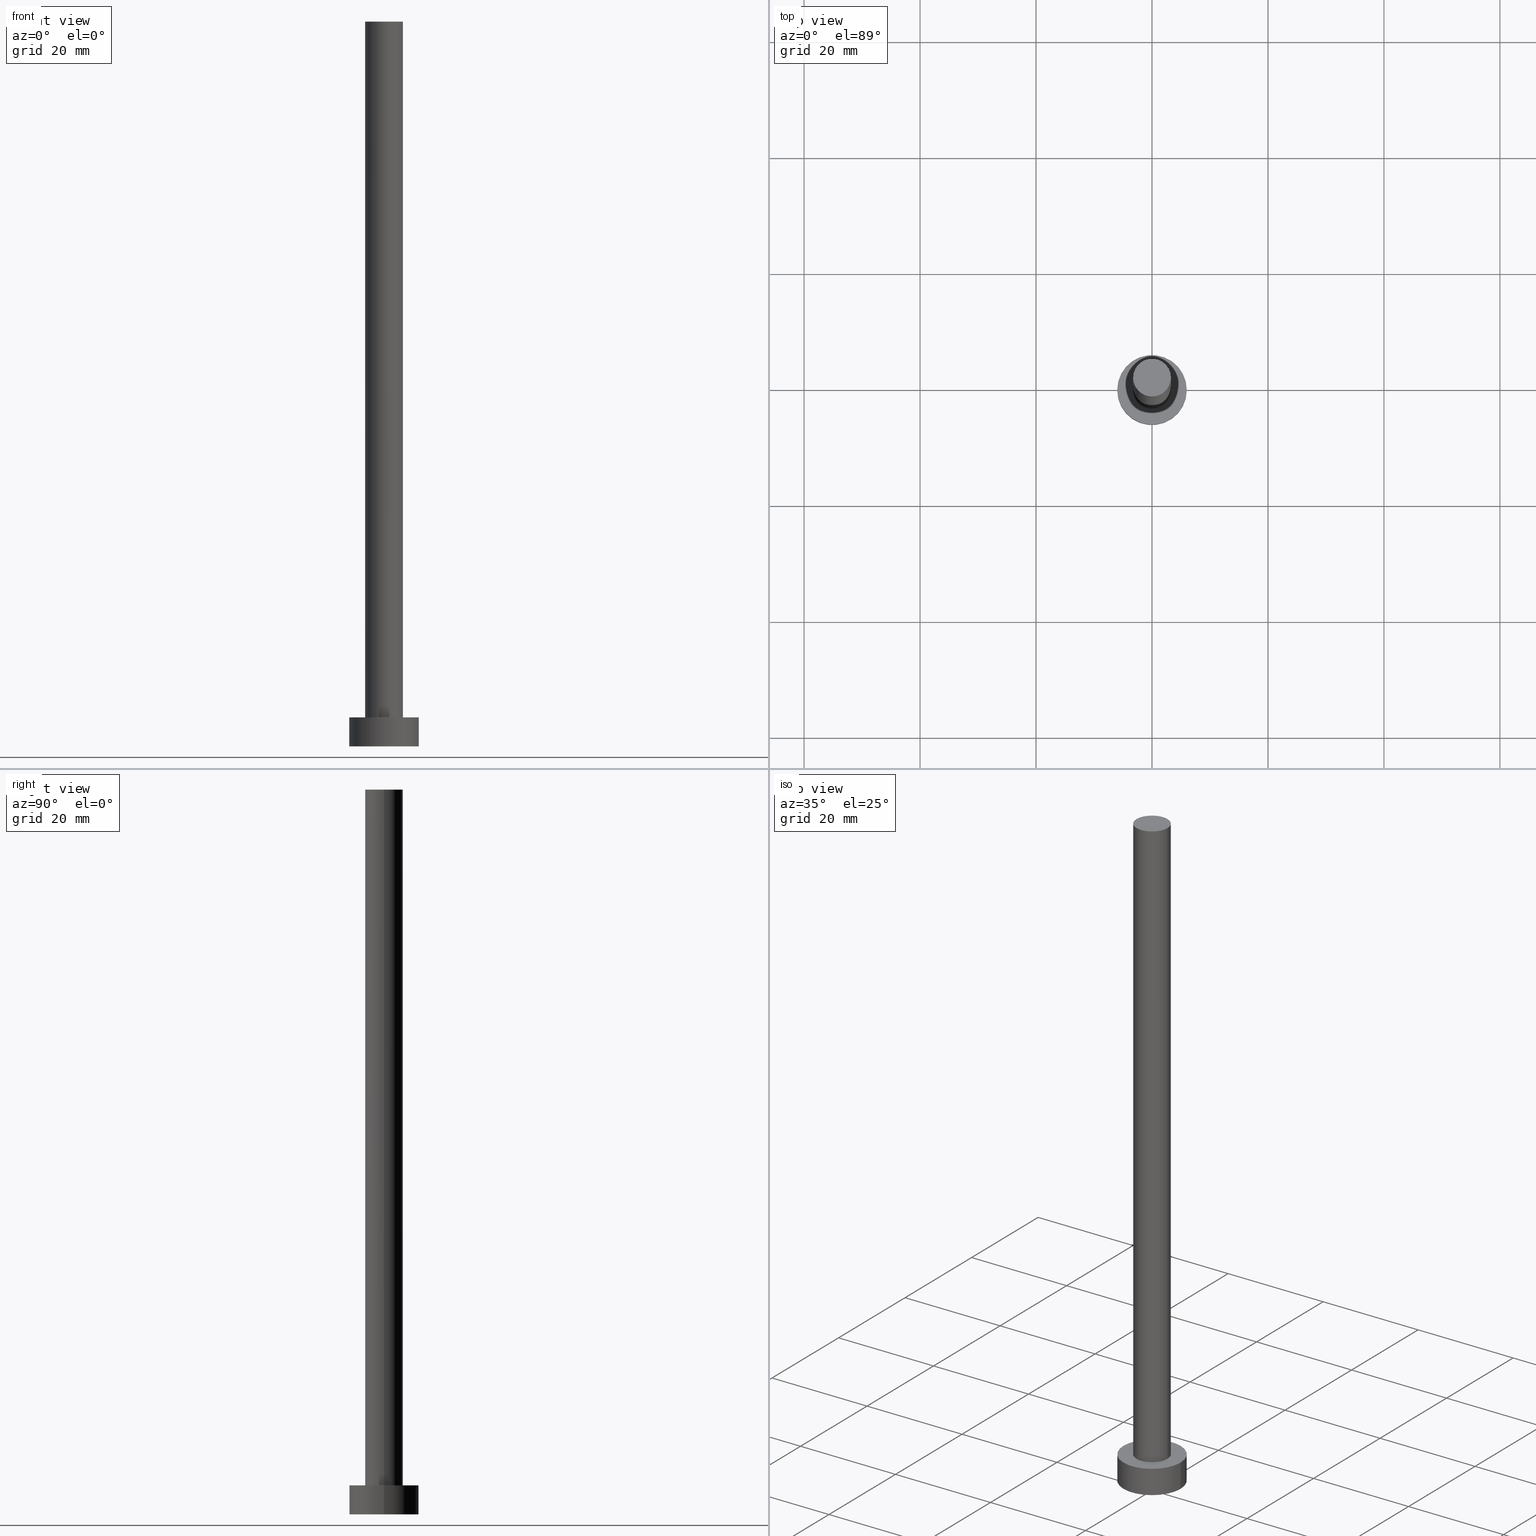
[diagram: canonical four-view strip — front | top / right | iso, engineering-drawing reading convention]
A machine part, canonical four-view strip (front | top / right | iso — engineering-drawing reading convention). The complete STEP part file that produces these views, byte-faithful:
ISO-10303-21;
HEADER;
FILE_DESCRIPTION (( 'STEP AP203' ),
    '1' );
FILE_NAME ('6fcb.STEP',
    '2023-02-13T14:04:38',
    ( '' ),
    ( '' ),
    'SwSTEP 2.0',
    'SolidWorks 2019',
    '' );
FILE_SCHEMA (( 'CONFIG_CONTROL_DESIGN' ));
ENDSEC;

DATA;
#1 =( NAMED_UNIT ( * ) PLANE_ANGLE_UNIT ( ) SI_UNIT ( $, .RADIAN. ) );
#2 = APPROVAL_STATUS ( 'not_yet_approved' ) ;
#3 = DESIGN_CONTEXT ( 'detailed design', #110, 'design' ) ;
#4 = ORIENTED_EDGE ( 'NONE', *, *, #38, .F. ) ;
#5 = ORIENTED_EDGE ( 'NONE', *, *, #147, .F. ) ;
#6 = CC_DESIGN_PERSON_AND_ORGANIZATION_ASSIGNMENT ( #42, #96, ( #28 ) ) ;
#7 = VERTEX_POINT ( 'NONE', #46 ) ;
#8 = FACE_OUTER_BOUND ( 'NONE', #214, .T. ) ;
#9 = AXIS2_PLACEMENT_3D ( 'NONE', #105, #83, #219 ) ;
#10 = APPROVAL_ROLE ( '' ) ;
#11 = ORIENTED_EDGE ( 'NONE', *, *, #203, .T. ) ;
#12 = EDGE_CURVE ( 'NONE', #165, #32, #95, .T. ) ;
#13 = PERSON_AND_ORGANIZATION ( #246, #21 ) ;
#14 = COORDINATED_UNIVERSAL_TIME_OFFSET ( 1, 0, .AHEAD. ) ;
#15 = ADVANCED_FACE ( 'NONE', ( #122 ), #163, .F. ) ;
#16 = CYLINDRICAL_SURFACE ( 'NONE', #196, 3.250000000000000444 ) ;
#17 =( GEOMETRIC_REPRESENTATION_CONTEXT ( 3 ) GLOBAL_UNCERTAINTY_ASSIGNED_CONTEXT ( ( #240 ) ) GLOBAL_UNIT_ASSIGNED_CONTEXT ( ( #91, #1, #100 ) ) REPRESENTATION_CONTEXT ( 'NONE', 'WORKASPACE' ) );
#18 = ADVANCED_FACE ( 'NONE', ( #67 ), #72, .T. ) ;
#19 = DIRECTION ( 'NONE',  ( 1.000000000000000000, 0.000000000000000000, 0.000000000000000000 ) ) ;
#20 = CIRCLE ( 'NONE', #212, 6.000000000000000888 ) ;
#21 = ORGANIZATION ( 'NEUR�EN�', 'NEUR�EN�', '' ) ;
#22 = CARTESIAN_POINT ( 'NONE',  ( 6.000000000000000888, 7.347880794884120722E-16, 5.000000000000000000 ) ) ;
#23 = CARTESIAN_POINT ( 'NONE',  ( -6.000000000000000888, 0.000000000000000000, 0.000000000000000000 ) ) ;
#24 = LINE ( 'NONE', #22, #207 ) ;
#25 = AXIS2_PLACEMENT_3D ( 'NONE', #251, #157, #185 ) ;
#26 = PERSON_AND_ORGANIZATION ( #246, #21 ) ;
#27 = EDGE_LOOP ( 'NONE', ( #225, #113, #211, #193 ) ) ;
#28 = SECURITY_CLASSIFICATION ( '', '', #172 ) ;
#29 = CARTESIAN_POINT ( 'NONE',  ( -6.000000000000000888, 0.000000000000000000, 5.000000000000000000 ) ) ;
#30 = DIRECTION ( 'NONE',  ( -0.000000000000000000, -0.000000000000000000, -1.000000000000000000 ) ) ;
#31 = EDGE_CURVE ( 'NONE', #7, #53, #101, .T. ) ;
#32 = VERTEX_POINT ( 'NONE', #204 ) ;
#33 = DIRECTION ( 'NONE',  ( -0.000000000000000000, -0.000000000000000000, -1.000000000000000000 ) ) ;
#34 = CC_DESIGN_APPROVAL ( #228, ( #28 ) ) ;
#35 = EDGE_CURVE ( 'NONE', #32, #130, #24, .T. ) ;
#36 = DIRECTION ( 'NONE',  ( 0.000000000000000000, 0.000000000000000000, 1.000000000000000000 ) ) ;
#37 = PRODUCT ( '6fcb', '6fcb', '', ( #171 ) ) ;
#38 = EDGE_CURVE ( 'NONE', #90, #53, #244, .T. ) ;
#39 = LOCAL_TIME ( 15, 4, 38.00000000000000000, #57 ) ;
#40 = FACE_OUTER_BOUND ( 'NONE', #71, .T. ) ;
#41 = EDGE_LOOP ( 'NONE', ( #108, #145, #74, #132 ) ) ;
#42 = PERSON_AND_ORGANIZATION ( #246, #21 ) ;
#43 = CARTESIAN_POINT ( 'NONE',  ( 0.000000000000000000, 0.000000000000000000, 5.000000000000000000 ) ) ;
#44 = CYLINDRICAL_SURFACE ( 'NONE', #9, 3.250000000000000444 ) ;
#45 = COORDINATED_UNIVERSAL_TIME_OFFSET ( 1, 0, .AHEAD. ) ;
#46 = CARTESIAN_POINT ( 'NONE',  ( -3.250000000000000444, 0.000000000000000000, 125.0000000000000000 ) ) ;
#47 = DIRECTION ( 'NONE',  ( 1.000000000000000000, 0.000000000000000000, 0.000000000000000000 ) ) ;
#48 = DIRECTION ( 'NONE',  ( -0.000000000000000000, -0.000000000000000000, -1.000000000000000000 ) ) ;
#49 = VERTEX_POINT ( 'NONE', #202 ) ;
#50 = LINE ( 'NONE', #29, #52 ) ;
#51 = DIRECTION ( 'NONE',  ( 1.000000000000000000, 0.000000000000000000, 0.000000000000000000 ) ) ;
#52 = VECTOR ( 'NONE', #209, 1000.000000000000000 ) ;
#53 = VERTEX_POINT ( 'NONE', #127 ) ;
#54 = CC_DESIGN_APPROVAL ( #97, ( #86 ) ) ;
#55 = DIRECTION ( 'NONE',  ( 0.000000000000000000, 0.000000000000000000, 1.000000000000000000 ) ) ;
#56 = LOCAL_TIME ( 15, 4, 38.00000000000000000, #14 ) ;
#57 = COORDINATED_UNIVERSAL_TIME_OFFSET ( 1, 0, .AHEAD. ) ;
#58 = CARTESIAN_POINT ( 'NONE',  ( 0.000000000000000000, 0.000000000000000000, 0.000000000000000000 ) ) ;
#59 = LOCAL_TIME ( 15, 4, 38.00000000000000000, #82 ) ;
#60 = ADVANCED_BREP_SHAPE_REPRESENTATION ( '6fcb', ( #233, #254 ), #17 ) ;
#61 = CIRCLE ( 'NONE', #120, 6.000000000000000888 ) ;
#62 = APPROVAL_DATE_TIME ( #65, #228 ) ;
#63 = DIRECTION ( 'NONE',  ( 1.000000000000000000, 0.000000000000000000, -0.000000000000000000 ) ) ;
#64 = FACE_OUTER_BOUND ( 'NONE', #41, .T. ) ;
#65 = DATE_AND_TIME ( #175, #56 ) ;
#66 = CARTESIAN_POINT ( 'NONE',  ( 0.000000000000000000, 0.000000000000000000, 5.000000000000000000 ) ) ;
#67 = FACE_OUTER_BOUND ( 'NONE', #170, .T. ) ;
#68 = DIRECTION ( 'NONE',  ( 0.000000000000000000, 0.000000000000000000, 1.000000000000000000 ) ) ;
#69 = DIRECTION ( 'NONE',  ( -1.000000000000000000, 0.000000000000000000, 0.000000000000000000 ) ) ;
#70 = ADVANCED_FACE ( 'NONE', ( #181 ), #44, .T. ) ;
#71 = EDGE_LOOP ( 'NONE', ( #151, #92, #89, #167 ) ) ;
#72 = CYLINDRICAL_SURFACE ( 'NONE', #188, 6.000000000000000888 ) ;
#73 = CIRCLE ( 'NONE', #138, 3.250000000000000444 ) ;
#74 = ORIENTED_EDGE ( 'NONE', *, *, #166, .T. ) ;
#75 = EDGE_CURVE ( 'NONE', #53, #90, #73, .T. ) ;
#76 = EDGE_LOOP ( 'NONE', ( #11, #146 ) ) ;
#77 = AXIS2_PLACEMENT_3D ( 'NONE', #142, #143, #47 ) ;
#78 = ORIENTED_EDGE ( 'NONE', *, *, #103, .T. ) ;
#79 = EDGE_CURVE ( 'NONE', #49, #90, #241, .T. ) ;
#80 = DATE_AND_TIME ( #179, #197 ) ;
#81 = APPLICATION_CONTEXT ( 'configuration controlled 3d designs of mechanical parts and assemblies' ) ;
#82 = COORDINATED_UNIVERSAL_TIME_OFFSET ( 1, 0, .AHEAD. ) ;
#83 = DIRECTION ( 'NONE',  ( -0.000000000000000000, -0.000000000000000000, -1.000000000000000000 ) ) ;
#84 = CARTESIAN_POINT ( 'NONE',  ( 0.000000000000000000, 0.000000000000000000, 5.000000000000000000 ) ) ;
#85 = CIRCLE ( 'NONE', #93, 3.250000000000000444 ) ;
#86 = PRODUCT_DEFINITION ( 'NEZN�M�', '', #229, #3 ) ;
#87 = APPROVAL_PERSON_ORGANIZATION ( #98, #94, #231 ) ;
#88 = CARTESIAN_POINT ( 'NONE',  ( -6.000000000000000888, 0.000000000000000000, 5.000000000000000000 ) ) ;
#89 = ORIENTED_EDGE ( 'NONE', *, *, #38, .T. ) ;
#90 = VERTEX_POINT ( 'NONE', #152 ) ;
#91 =( LENGTH_UNIT ( ) NAMED_UNIT ( * ) SI_UNIT ( .MILLI., .METRE. ) );
#92 = ORIENTED_EDGE ( 'NONE', *, *, #79, .T. ) ;
#93 = AXIS2_PLACEMENT_3D ( 'NONE', #116, #55, #117 ) ;
#94 = APPROVAL ( #2, 'NEUR�EN�' ) ;
#95 = CIRCLE ( 'NONE', #150, 6.000000000000000888 ) ;
#96 = PERSON_AND_ORGANIZATION_ROLE ( 'classification_officer' ) ;
#97 = APPROVAL ( #221, 'NEUR�EN�' ) ;
#98 = PERSON_AND_ORGANIZATION ( #246, #21 ) ;
#99 = CARTESIAN_POINT ( 'NONE',  ( 0.000000000000000000, 0.000000000000000000, 5.000000000000000000 ) ) ;
#100 =( NAMED_UNIT ( * ) SI_UNIT ( $, .STERADIAN. ) SOLID_ANGLE_UNIT ( ) );
#101 = LINE ( 'NONE', #124, #183 ) ;
#102 = FACE_OUTER_BOUND ( 'NONE', #76, .T. ) ;
#103 = EDGE_CURVE ( 'NONE', #130, #112, #168, .T. ) ;
#104 = PERSON_AND_ORGANIZATION_ROLE ( 'creator' ) ;
#105 = CARTESIAN_POINT ( 'NONE',  ( 0.000000000000000000, 0.000000000000000000, 125.0000000000000000 ) ) ;
#106 = APPROVAL_ROLE ( '' ) ;
#107 = ORIENTED_EDGE ( 'NONE', *, *, #12, .T. ) ;
#108 = ORIENTED_EDGE ( 'NONE', *, *, #35, .F. ) ;
#109 = FACE_BOUND ( 'NONE', #243, .T. ) ;
#110 = APPLICATION_CONTEXT ( 'configuration controlled 3d designs of mechanical parts and assemblies' ) ;
#111 = APPLICATION_PROTOCOL_DEFINITION ( 'international standard', 'config_control_design', 1994, #81 ) ;
#112 = VERTEX_POINT ( 'NONE', #23 ) ;
#113 = ORIENTED_EDGE ( 'NONE', *, *, #203, .F. ) ;
#114 = CYLINDRICAL_SURFACE ( 'NONE', #129, 6.000000000000000888 ) ;
#115 = ORIENTED_EDGE ( 'NONE', *, *, #166, .F. ) ;
#116 = CARTESIAN_POINT ( 'NONE',  ( 0.000000000000000000, 0.000000000000000000, 125.0000000000000000 ) ) ;
#117 = DIRECTION ( 'NONE',  ( 1.000000000000000000, 0.000000000000000000, 0.000000000000000000 ) ) ;
#118 = PERSON_AND_ORGANIZATION_ROLE ( 'design_supplier' ) ;
#119 = APPROVAL_STATUS ( 'not_yet_approved' ) ;
#120 = AXIS2_PLACEMENT_3D ( 'NONE', #232, #68, #220 ) ;
#121 = DATE_TIME_ROLE ( 'creation_date' ) ;
#122 = FACE_OUTER_BOUND ( 'NONE', #189, .T. ) ;
#123 = DIRECTION ( 'NONE',  ( 0.000000000000000000, 0.000000000000000000, 1.000000000000000000 ) ) ;
#124 = CARTESIAN_POINT ( 'NONE',  ( -3.250000000000000444, 0.000000000000000000, 125.0000000000000000 ) ) ;
#125 = CC_DESIGN_APPROVAL ( #94, ( #229 ) ) ;
#126 = PERSON_AND_ORGANIZATION ( #246, #21 ) ;
#127 = CARTESIAN_POINT ( 'NONE',  ( -3.250000000000000444, 0.000000000000000000, 5.000000000000000000 ) ) ;
#128 = DIRECTION ( 'NONE',  ( 0.000000000000000000, 0.000000000000000000, 1.000000000000000000 ) ) ;
#129 = AXIS2_PLACEMENT_3D ( 'NONE', #66, #213, #248 ) ;
#130 = VERTEX_POINT ( 'NONE', #200 ) ;
#131 = APPROVAL_PERSON_ORGANIZATION ( #182, #97, #106 ) ;
#132 = ORIENTED_EDGE ( 'NONE', *, *, #136, .T. ) ;
#133 = DATE_TIME_ROLE ( 'classification_date' ) ;
#134 = EDGE_CURVE ( 'NONE', #49, #7, #135, .T. ) ;
#135 = CIRCLE ( 'NONE', #230, 3.250000000000000444 ) ;
#136 = EDGE_CURVE ( 'NONE', #112, #130, #61, .T. ) ;
#137 = SHAPE_DEFINITION_REPRESENTATION ( #198, #60 ) ;
#138 = AXIS2_PLACEMENT_3D ( 'NONE', #99, #159, #51 ) ;
#139 = DIRECTION ( 'NONE',  ( -0.000000000000000000, -0.000000000000000000, -1.000000000000000000 ) ) ;
#140 = DIRECTION ( 'NONE',  ( -0.000000000000000000, -0.000000000000000000, -1.000000000000000000 ) ) ;
#141 = CARTESIAN_POINT ( 'NONE',  ( 0.000000000000000000, 0.000000000000000000, 125.0000000000000000 ) ) ;
#142 = CARTESIAN_POINT ( 'NONE',  ( 0.000000000000000000, 0.000000000000000000, 5.000000000000000000 ) ) ;
#143 = DIRECTION ( 'NONE',  ( 0.000000000000000000, 0.000000000000000000, 1.000000000000000000 ) ) ;
#144 = CARTESIAN_POINT ( 'NONE',  ( 0.000000000000000000, 0.000000000000000000, 5.000000000000000000 ) ) ;
#145 = ORIENTED_EDGE ( 'NONE', *, *, #12, .F. ) ;
#146 = ORIENTED_EDGE ( 'NONE', *, *, #134, .T. ) ;
#147 = EDGE_CURVE ( 'NONE', #32, #165, #20, .T. ) ;
#148 = DIRECTION ( 'NONE',  ( 1.000000000000000000, 0.000000000000000000, -0.000000000000000000 ) ) ;
#149 = PERSON_AND_ORGANIZATION_ROLE ( 'creator' ) ;
#150 = AXIS2_PLACEMENT_3D ( 'NONE', #144, #239, #237 ) ;
#151 = ORIENTED_EDGE ( 'NONE', *, *, #134, .F. ) ;
#152 = CARTESIAN_POINT ( 'NONE',  ( 3.250000000000000444, 3.980102097228898231E-16, 5.000000000000000000 ) ) ;
#153 = CALENDAR_DATE ( 2023, 13, 2 ) ;
#154 = ADVANCED_FACE ( 'NONE', ( #102 ), #158, .T. ) ;
#155 = APPROVAL_DATE_TIME ( #80, #94 ) ;
#156 = APPROVAL_PERSON_ORGANIZATION ( #13, #228, #10 ) ;
#157 = DIRECTION ( 'NONE',  ( 0.000000000000000000, 0.000000000000000000, 1.000000000000000000 ) ) ;
#158 = PLANE ( 'NONE',  #195 ) ;
#159 = DIRECTION ( 'NONE',  ( 0.000000000000000000, 0.000000000000000000, 1.000000000000000000 ) ) ;
#160 = CC_DESIGN_DATE_AND_TIME_ASSIGNMENT ( #247, #133, ( #28 ) ) ;
#161 = LOCAL_TIME ( 15, 4, 38.00000000000000000, #187 ) ;
#162 = DIRECTION ( 'NONE',  ( 0.000000000000000000, 0.000000000000000000, 1.000000000000000000 ) ) ;
#163 = PLANE ( 'NONE',  #25 ) ;
#164 = VECTOR ( 'NONE', #30, 1000.000000000000000 ) ;
#165 = VERTEX_POINT ( 'NONE', #88 ) ;
#166 = EDGE_CURVE ( 'NONE', #165, #112, #50, .T. ) ;
#167 = ORIENTED_EDGE ( 'NONE', *, *, #31, .F. ) ;
#168 = CIRCLE ( 'NONE', #205, 6.000000000000000888 ) ;
#169 = ORIENTED_EDGE ( 'NONE', *, *, #136, .F. ) ;
#170 = EDGE_LOOP ( 'NONE', ( #5, #208, #78, #115 ) ) ;
#171 = MECHANICAL_CONTEXT ( 'NONE', #81, 'mechanical' ) ;
#172 = SECURITY_CLASSIFICATION_LEVEL ( 'unclassified' ) ;
#173 = CARTESIAN_POINT ( 'NONE',  ( 3.250000000000000444, 3.980102097228898231E-16, 125.0000000000000000 ) ) ;
#174 = ORIENTED_EDGE ( 'NONE', *, *, #75, .F. ) ;
#175 = CALENDAR_DATE ( 2023, 13, 2 ) ;
#176 = CARTESIAN_POINT ( 'NONE',  ( 0.000000000000000000, 0.000000000000000000, 125.0000000000000000 ) ) ;
#177 = DIRECTION ( 'NONE',  ( 1.000000000000000000, 0.000000000000000000, 0.000000000000000000 ) ) ;
#178 = ADVANCED_FACE ( 'NONE', ( #109, #8 ), #186, .T. ) ;
#179 = CALENDAR_DATE ( 2023, 13, 2 ) ;
#180 = CALENDAR_DATE ( 2023, 13, 2 ) ;
#181 = FACE_OUTER_BOUND ( 'NONE', #27, .T. ) ;
#182 = PERSON_AND_ORGANIZATION ( #246, #21 ) ;
#183 = VECTOR ( 'NONE', #139, 1000.000000000000000 ) ;
#184 = DATE_AND_TIME ( #201, #161 ) ;
#185 = DIRECTION ( 'NONE',  ( 1.000000000000000000, 0.000000000000000000, -0.000000000000000000 ) ) ;
#186 = PLANE ( 'NONE',  #199 ) ;
#187 = COORDINATED_UNIVERSAL_TIME_OFFSET ( 1, 0, .AHEAD. ) ;
#188 = AXIS2_PLACEMENT_3D ( 'NONE', #224, #48, #69 ) ;
#189 = EDGE_LOOP ( 'NONE', ( #169, #190 ) ) ;
#190 = ORIENTED_EDGE ( 'NONE', *, *, #103, .F. ) ;
#191 = DIRECTION ( 'NONE',  ( -1.000000000000000000, 0.000000000000000000, 0.000000000000000000 ) ) ;
#192 = CLOSED_SHELL ( 'NONE', ( #235, #18, #223, #178, #15, #70, #154 ) ) ;
#193 = ORIENTED_EDGE ( 'NONE', *, *, #75, .T. ) ;
#194 = DIRECTION ( 'NONE',  ( 1.000000000000000000, 0.000000000000000000, 0.000000000000000000 ) ) ;
#195 = AXIS2_PLACEMENT_3D ( 'NONE', #141, #128, #148 ) ;
#196 = AXIS2_PLACEMENT_3D ( 'NONE', #176, #33, #191 ) ;
#197 = LOCAL_TIME ( 15, 4, 38.00000000000000000, #45 ) ;
#198 = PRODUCT_DEFINITION_SHAPE ( 'NONE', 'NONE',  #86 ) ;
#199 = AXIS2_PLACEMENT_3D ( 'NONE', #84, #162, #63 ) ;
#200 = CARTESIAN_POINT ( 'NONE',  ( 6.000000000000000888, 7.347880794884120722E-16, 0.000000000000000000 ) ) ;
#201 = CALENDAR_DATE ( 2023, 13, 2 ) ;
#202 = CARTESIAN_POINT ( 'NONE',  ( 3.250000000000000444, 3.980102097228898231E-16, 125.0000000000000000 ) ) ;
#203 = EDGE_CURVE ( 'NONE', #7, #49, #85, .T. ) ;
#204 = CARTESIAN_POINT ( 'NONE',  ( 6.000000000000000888, 7.347880794884120722E-16, 5.000000000000000000 ) ) ;
#205 = AXIS2_PLACEMENT_3D ( 'NONE', #58, #206, #177 ) ;
#206 = DIRECTION ( 'NONE',  ( 0.000000000000000000, 0.000000000000000000, 1.000000000000000000 ) ) ;
#207 = VECTOR ( 'NONE', #140, 1000.000000000000000 ) ;
#208 = ORIENTED_EDGE ( 'NONE', *, *, #35, .T. ) ;
#209 = DIRECTION ( 'NONE',  ( -0.000000000000000000, -0.000000000000000000, -1.000000000000000000 ) ) ;
#210 = CC_DESIGN_PERSON_AND_ORGANIZATION_ASSIGNMENT ( #126, #250, ( #37 ) ) ;
#211 = ORIENTED_EDGE ( 'NONE', *, *, #31, .T. ) ;
#212 = AXIS2_PLACEMENT_3D ( 'NONE', #43, #123, #19 ) ;
#213 = DIRECTION ( 'NONE',  ( -0.000000000000000000, -0.000000000000000000, -1.000000000000000000 ) ) ;
#214 = EDGE_LOOP ( 'NONE', ( #107, #245 ) ) ;
#215 = CARTESIAN_POINT ( 'NONE',  ( 0.000000000000000000, 0.000000000000000000, 0.000000000000000000 ) ) ;
#216 = CC_DESIGN_PERSON_AND_ORGANIZATION_ASSIGNMENT ( #226, #118, ( #229 ) ) ;
#217 = DIRECTION ( 'NONE',  ( 0.000000000000000000, 0.000000000000000000, 1.000000000000000000 ) ) ;
#218 = PERSON_AND_ORGANIZATION ( #246, #21 ) ;
#219 = DIRECTION ( 'NONE',  ( -1.000000000000000000, 0.000000000000000000, 0.000000000000000000 ) ) ;
#220 = DIRECTION ( 'NONE',  ( 1.000000000000000000, 0.000000000000000000, 0.000000000000000000 ) ) ;
#221 = APPROVAL_STATUS ( 'not_yet_approved' ) ;
#222 = APPROVAL_DATE_TIME ( #184, #97 ) ;
#223 = ADVANCED_FACE ( 'NONE', ( #64 ), #114, .T. ) ;
#224 = CARTESIAN_POINT ( 'NONE',  ( 0.000000000000000000, 0.000000000000000000, 5.000000000000000000 ) ) ;
#225 = ORIENTED_EDGE ( 'NONE', *, *, #79, .F. ) ;
#226 = PERSON_AND_ORGANIZATION ( #246, #21 ) ;
#227 = CC_DESIGN_DATE_AND_TIME_ASSIGNMENT ( #234, #121, ( #86 ) ) ;
#228 = APPROVAL ( #119, 'NEUR�EN�' ) ;
#229 = PRODUCT_DEFINITION_FORMATION_WITH_SPECIFIED_SOURCE ( 'LIBOVOLN�', '', #37, .NOT_KNOWN. ) ;
#230 = AXIS2_PLACEMENT_3D ( 'NONE', #249, #217, #252 ) ;
#231 = APPROVAL_ROLE ( '' ) ;
#232 = CARTESIAN_POINT ( 'NONE',  ( 0.000000000000000000, 0.000000000000000000, 0.000000000000000000 ) ) ;
#233 = MANIFOLD_SOLID_BREP ( 'P�idat vysunut�m3', #192 ) ;
#234 = DATE_AND_TIME ( #180, #59 ) ;
#235 = ADVANCED_FACE ( 'NONE', ( #40 ), #16, .T. ) ;
#236 = APPLICATION_PROTOCOL_DEFINITION ( 'international standard', 'config_control_design', 1994, #110 ) ;
#237 = DIRECTION ( 'NONE',  ( 1.000000000000000000, 0.000000000000000000, 0.000000000000000000 ) ) ;
#238 = CC_DESIGN_PERSON_AND_ORGANIZATION_ASSIGNMENT ( #26, #104, ( #86 ) ) ;
#239 = DIRECTION ( 'NONE',  ( 0.000000000000000000, 0.000000000000000000, 1.000000000000000000 ) ) ;
#240 = UNCERTAINTY_MEASURE_WITH_UNIT (LENGTH_MEASURE( 1.000000000000000082E-05 ), #91, 'distance_accuracy_value', 'NONE');
#241 = LINE ( 'NONE', #173, #164 ) ;
#242 = PRODUCT_RELATED_PRODUCT_CATEGORY ( 'detail', '', ( #37 ) ) ;
#243 = EDGE_LOOP ( 'NONE', ( #174, #4 ) ) ;
#244 = CIRCLE ( 'NONE', #77, 3.250000000000000444 ) ;
#245 = ORIENTED_EDGE ( 'NONE', *, *, #147, .T. ) ;
#246 = PERSON ( 'NEUR�EN�', 'NEUR�EN�', 'NEUR�EN�', ('NEUR�EN�'), ('NEUR�EN�'), ('NEUR�EN�') ) ;
#247 = DATE_AND_TIME ( #153, #39 ) ;
#248 = DIRECTION ( 'NONE',  ( -1.000000000000000000, 0.000000000000000000, 0.000000000000000000 ) ) ;
#249 = CARTESIAN_POINT ( 'NONE',  ( 0.000000000000000000, 0.000000000000000000, 125.0000000000000000 ) ) ;
#250 = PERSON_AND_ORGANIZATION_ROLE ( 'design_owner' ) ;
#251 = CARTESIAN_POINT ( 'NONE',  ( 0.000000000000000000, 0.000000000000000000, 0.000000000000000000 ) ) ;
#252 = DIRECTION ( 'NONE',  ( 1.000000000000000000, 0.000000000000000000, 0.000000000000000000 ) ) ;
#253 = CC_DESIGN_PERSON_AND_ORGANIZATION_ASSIGNMENT ( #218, #149, ( #229 ) ) ;
#254 = AXIS2_PLACEMENT_3D ( 'NONE', #215, #36, #194 ) ;
#255 = CC_DESIGN_SECURITY_CLASSIFICATION ( #28, ( #229 ) ) ;
ENDSEC;
END-ISO-10303-21;
